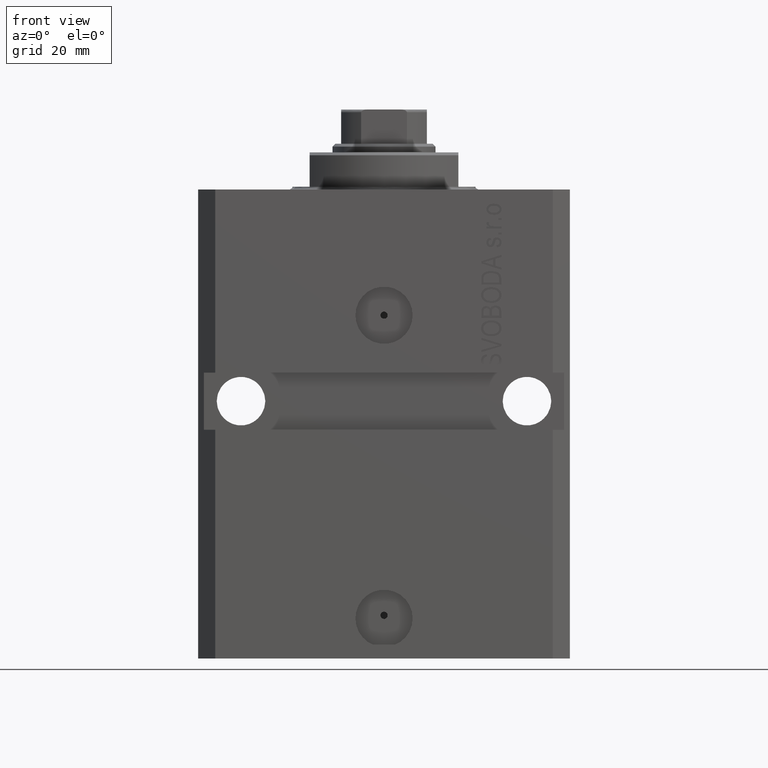
[diagram: clean part render]
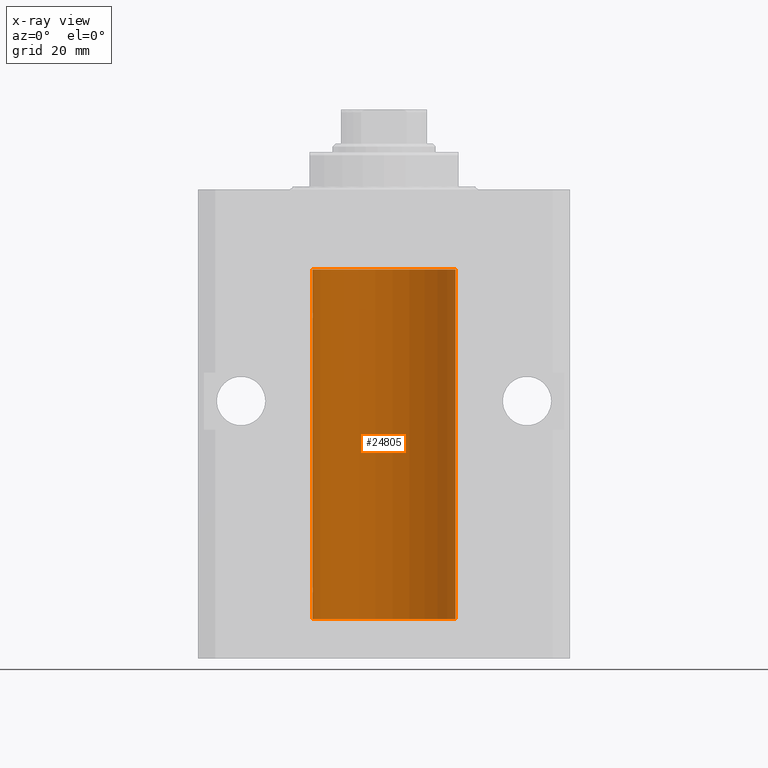
[diagram: x-ray — body ghosted, one internal face saturated and labeled with its STEP entity id]
A machine part, front view, then the same camera in x-ray: the body is ghosted and one INTERNAL B-rep face — a face not visible from any outside direction — is saturated and labeled: STEP entity #24805.
In plain terms, the highlighted cylindrical surface (partial cylindrical patch) has radius 12.5 mm, axis along (0, 0, 1).
Its self-contained STEP definition (entity closure, byte-faithful):
#160 = ORIENTED_EDGE ( 'NONE', *, *, #35553, .F. ) ;
#379 = CARTESIAN_POINT ( 'NONE',  ( -12.50000000000017941, 3.883381774819353300E-13, -70.62500000000359535 ) ) ;
#1246 = CARTESIAN_POINT ( 'NONE',  ( 0.000000000000000000, 0.000000000000000000, -13.99999999999999822 ) ) ;
#1987 = AXIS2_PLACEMENT_3D ( 'NONE', #9676, #41411, #13018 ) ;
#2720 = ORIENTED_EDGE ( 'NONE', *, *, #6843, .T. ) ;
#3817 = VECTOR ( 'NONE', #21388, 1000.000000000000000 ) ;
#4146 = B_SPLINE_CURVE_WITH_KNOTS ( 'NONE', 3,
 ( #13771, #28307, #24735, #39296, #21380, #4194, #14931, #8260, #22792, #11127, #44038, #18973, #34003, #379 ),
 .UNSPECIFIED., .F., .F.,
 ( 4, 2, 2, 2, 2, 2, 4 ),
 ( 3.483724445085607221E-18, 0.0002442924852390797232, 0.0004885849704781559770, 0.0009771699409563379748, 0.001221462426195449357, 0.001465754911434561172, 0.001954339881912784370 ),
 .UNSPECIFIED. ) ;
#4194 = CARTESIAN_POINT ( 'NONE',  ( -12.48810268015257208, 0.5573155909661273721, -69.67347410093869087 ) ) ;
#5026 = VERTEX_POINT ( 'NONE', #27691 ) ;
#5357 = CARTESIAN_POINT ( 'NONE',  ( -12.49999999999999289, 0.1631761135151241215, -22.62499999999984013 ) ) ;
#5775 = CIRCLE ( 'NONE', #1987, 12.50000000000000000 ) ;
#6727 = VECTOR ( 'NONE', #41497, 1000.000000000000000 ) ;
#6843 = EDGE_CURVE ( 'NONE', #28366, #27562, #29712, .T. ) ;
#7056 = CARTESIAN_POINT ( 'NONE',  ( -12.50000000000000000, -2.089494013101375120E-17, -21.37499999999999645 ) ) ;
#7241 = FACE_OUTER_BOUND ( 'NONE', #25332, .T. ) ;
#7707 = CYLINDRICAL_SURFACE ( 'NONE', #24169, 12.50000000000000000 ) ;
#8260 = CARTESIAN_POINT ( 'NONE',  ( -12.48436376893640265, 0.6250290278979901970, -70.08132082824475617 ) ) ;
#8475 = CARTESIAN_POINT ( 'NONE',  ( -12.49011732893843529, 0.5003763274120274218, -22.38348111289287701 ) ) ;
#8856 = ORIENTED_EDGE ( 'NONE', *, *, #15137, .F. ) ;
#9676 = CARTESIAN_POINT ( 'NONE',  ( 0.000000000000000000, 0.000000000000000000, -75.09999999999999432 ) ) ;
#9942 = CARTESIAN_POINT ( 'NONE',  ( -12.50000000000000000, -1.215737760208260777E-14, -69.37500000000000000 ) ) ;
#11127 = CARTESIAN_POINT ( 'NONE',  ( -12.48809959379011580, 0.5462151254764953112, -70.31461370481615347 ) ) ;
#11183 = ORIENTED_EDGE ( 'NONE', *, *, #14957, .T. ) ;
#11401 = VECTOR ( 'NONE', #44194, 1000.000000000000000 ) ;
#12050 = CARTESIAN_POINT ( 'NONE',  ( -12.50000000000000000, 0.08260426088729219685, -21.37500000000000000 ) ) ;
#12659 = CARTESIAN_POINT ( 'NONE',  ( -12.50000000000000000, 1.530808498934191521E-15, -13.99999999999999822 ) ) ;
#12902 = VERTEX_POINT ( 'NONE', #12659 ) ;
#13018 = DIRECTION ( 'NONE',  ( 1.000000000000000000, 0.000000000000000000, 0.000000000000000000 ) ) ;
#13609 = EDGE_CURVE ( 'NONE', #28366, #12902, #39233, .T. ) ;
#13771 = CARTESIAN_POINT ( 'NONE',  ( -12.50000000000000000, -1.215737760208260777E-14, -69.37500000000000000 ) ) ;
#14931 = CARTESIAN_POINT ( 'NONE',  ( -12.48436813453758454, 0.6249418250771163752, -69.83668996798922990 ) ) ;
#14957 = EDGE_CURVE ( 'NONE', #18567, #46680, #4146, .T. ) ;
#15080 = LINE ( 'NONE', #29607, #11401 ) ;
#15100 = VERTEX_POINT ( 'NONE', #27318 ) ;
#15137 = EDGE_CURVE ( 'NONE', #21166, #15100, #5775, .T. ) ;
#15789 = DIRECTION ( 'NONE',  ( 0.000000000000000000, 0.000000000000000000, 1.000000000000000000 ) ) ;
#16095 = CARTESIAN_POINT ( 'NONE',  ( -12.49625855304193678, 0.3150454781038042329, -21.45402800297484802 ) ) ;
#16337 = CARTESIAN_POINT ( 'NONE',  ( -12.49915784441386890, 0.1636601911727947889, -21.39126818989430490 ) ) ;
#18567 = VERTEX_POINT ( 'NONE', #9942 ) ;
#18973 = CARTESIAN_POINT ( 'NONE',  ( -12.49631005746706158, 0.3253680783018484401, -70.55856740465394239 ) ) ;
#19905 = CARTESIAN_POINT ( 'NONE',  ( -12.50000000000017941, 3.883381646606358354E-13, -22.62500000000358824 ) ) ;
#20394 = DIRECTION ( 'NONE',  ( -0.000000000000000000, -0.000000000000000000, 1.000000000000000000 ) ) ;
#20438 = ORIENTED_EDGE ( 'NONE', *, *, #13609, .F. ) ;
#21166 = VERTEX_POINT ( 'NONE', #35683 ) ;
#21380 = CARTESIAN_POINT ( 'NONE',  ( -12.49422197749724184, 0.3843754434364289319, -69.50047099568097053 ) ) ;
#21388 = DIRECTION ( 'NONE',  ( -0.000000000000000000, -0.000000000000000000, 1.000000000000000000 ) ) ;
#22016 = DIRECTION ( 'NONE',  ( 1.000000000000000000, 0.000000000000000000, 0.000000000000000000 ) ) ;
#22590 = CARTESIAN_POINT ( 'NONE',  ( -12.50000000000017941, 3.883381774819353300E-13, -70.62500000000359535 ) ) ;
#22776 = CARTESIAN_POINT ( 'NONE',  ( -12.48436813453758454, 0.6249418250771192618, -21.83668996798922635 ) ) ;
#22792 = CARTESIAN_POINT ( 'NONE',  ( -12.48520330846397819, 0.6088355886774100556, -70.16325431852558836 ) ) ;
#23018 = CARTESIAN_POINT ( 'NONE',  ( -12.49631005746706336, 0.3253680783018528255, -22.55856740465392463 ) ) ;
#24169 = AXIS2_PLACEMENT_3D ( 'NONE', #29163, #40157, #22016 ) ;
#24235 = AXIS2_PLACEMENT_3D ( 'NONE', #1246, #15789, #26996 ) ;
#24735 = CARTESIAN_POINT ( 'NONE',  ( -12.49915784441386890, 0.1636601911727927350, -69.39126818989429069 ) ) ;
#24805 = ADVANCED_FACE ( 'NONE', ( #7241 ), #7707, .F. ) ;
#25332 = EDGE_LOOP ( 'NONE', ( #160, #8856, #45741, #33574, #20438, #2720, #34416, #11183 ) ) ;
#26590 = CARTESIAN_POINT ( 'NONE',  ( -12.48436376893640443, 0.6250290278979917513, -22.08132082824473486 ) ) ;
#26996 = DIRECTION ( 'NONE',  ( 1.000000000000000000, 0.000000000000000000, 0.000000000000000000 ) ) ;
#27071 = CARTESIAN_POINT ( 'NONE',  ( -12.48809959379011403, 0.5462151254764975317, -22.31461370481611795 ) ) ;
#27109 = EDGE_CURVE ( 'NONE', #5026, #12902, #28040, .T. ) ;
#27313 = EDGE_CURVE ( 'NONE', #18567, #27562, #44849, .T. ) ;
#27318 = CARTESIAN_POINT ( 'NONE',  ( -12.50000000000000000, 1.530808498934191521E-15, -75.09999999999999432 ) ) ;
#27562 = VERTEX_POINT ( 'NONE', #41682 ) ;
#27691 = CARTESIAN_POINT ( 'NONE',  ( 12.50000000000000000, 0.000000000000000000, -13.99999999999999822 ) ) ;
#28040 = CIRCLE ( 'NONE', #24235, 12.50000000000000000 ) ;
#28307 = CARTESIAN_POINT ( 'NONE',  ( -12.50000000000000000, 0.08260426088728306526, -69.37499999999998579 ) ) ;
#28366 = VERTEX_POINT ( 'NONE', #30914 ) ;
#28712 = CARTESIAN_POINT ( 'NONE',  ( -12.50000000000000000, 1.530808498934191521E-15, -75.09999999999999432 ) ) ;
#29163 = CARTESIAN_POINT ( 'NONE',  ( 0.000000000000000000, 0.000000000000000000, -75.09999999999999432 ) ) ;
#29607 = CARTESIAN_POINT ( 'NONE',  ( 12.50000000000000000, 0.000000000000000000, -75.09999999999999432 ) ) ;
#29712 = B_SPLINE_CURVE_WITH_KNOTS ( 'NONE', 3,
 ( #7056, #12050, #16337, #16095, #30879, #34217, #22776, #26590, #41146, #27071, #8475, #23018, #5357, #19905 ),
 .UNSPECIFIED., .F., .F.,
 ( 4, 2, 2, 2, 2, 2, 4 ),
 ( 2.030551168097110502E-20, 0.0002442924852390969078, 0.0004885849704781938157, 0.0009771699409563880650, 0.001221462426195485135, 0.001465754911434582423, 0.001954339881912776130 ),
 .UNSPECIFIED. ) ;
#29829 = EDGE_CURVE ( 'NONE', #21166, #5026, #15080, .T. ) ;
#30504 = CARTESIAN_POINT ( 'NONE',  ( -12.50000000000000000, 1.530808498934191521E-15, -75.09999999999999432 ) ) ;
#30879 = CARTESIAN_POINT ( 'NONE',  ( -12.49422197749724006, 0.3843754434364375916, -21.50047099568095277 ) ) ;
#30914 = CARTESIAN_POINT ( 'NONE',  ( -12.50000000000000000, -2.089494013101375120E-17, -21.37499999999999645 ) ) ;
#32354 = VECTOR ( 'NONE', #20394, 1000.000000000000000 ) ;
#33297 = CARTESIAN_POINT ( 'NONE',  ( -12.50000000000000000, 1.530808498934191521E-15, -75.09999999999999432 ) ) ;
#33574 = ORIENTED_EDGE ( 'NONE', *, *, #27109, .T. ) ;
#34003 = CARTESIAN_POINT ( 'NONE',  ( -12.49999999999999112, 0.1631761135151224562, -70.62499999999988631 ) ) ;
#34217 = CARTESIAN_POINT ( 'NONE',  ( -12.48810268015257563, 0.5573155909661349217, -21.67347410093867666 ) ) ;
#34416 = ORIENTED_EDGE ( 'NONE', *, *, #27313, .F. ) ;
#35553 = EDGE_CURVE ( 'NONE', #15100, #46680, #39998, .T. ) ;
#35683 = CARTESIAN_POINT ( 'NONE',  ( 12.50000000000000000, 0.000000000000000000, -75.09999999999999432 ) ) ;
#39233 = LINE ( 'NONE', #28712, #32354 ) ;
#39296 = CARTESIAN_POINT ( 'NONE',  ( -12.49625855304193855, 0.3150454781038029006, -69.45402800297486579 ) ) ;
#39998 = LINE ( 'NONE', #33297, #3817 ) ;
#40157 = DIRECTION ( 'NONE',  ( -0.000000000000000000, -0.000000000000000000, 1.000000000000000000 ) ) ;
#41146 = CARTESIAN_POINT ( 'NONE',  ( -12.48520330846397819, 0.6088355886774127201, -22.16325431852561323 ) ) ;
#41411 = DIRECTION ( 'NONE',  ( 0.000000000000000000, 0.000000000000000000, 1.000000000000000000 ) ) ;
#41497 = DIRECTION ( 'NONE',  ( -0.000000000000000000, -0.000000000000000000, 1.000000000000000000 ) ) ;
#41682 = CARTESIAN_POINT ( 'NONE',  ( -12.50000000000017941, 3.883381646606358354E-13, -22.62500000000358824 ) ) ;
#44038 = CARTESIAN_POINT ( 'NONE',  ( -12.49011732893844062, 0.5003763274120228699, -70.38348111289288056 ) ) ;
#44194 = DIRECTION ( 'NONE',  ( -0.000000000000000000, -0.000000000000000000, 1.000000000000000000 ) ) ;
#44849 = LINE ( 'NONE', #30504, #6727 ) ;
#45741 = ORIENTED_EDGE ( 'NONE', *, *, #29829, .T. ) ;
#46680 = VERTEX_POINT ( 'NONE', #22590 ) ;